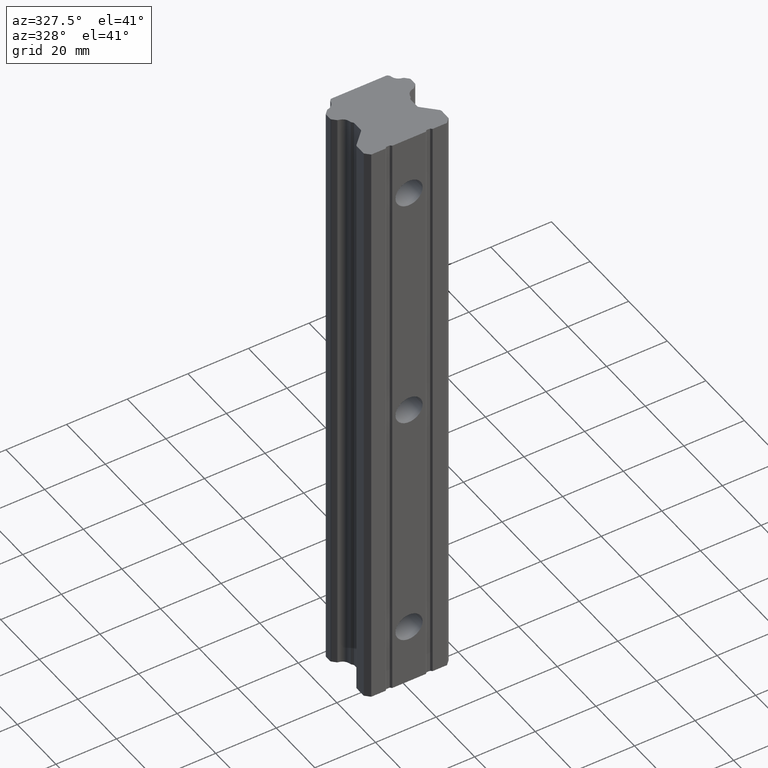
[diagram: clean part render]
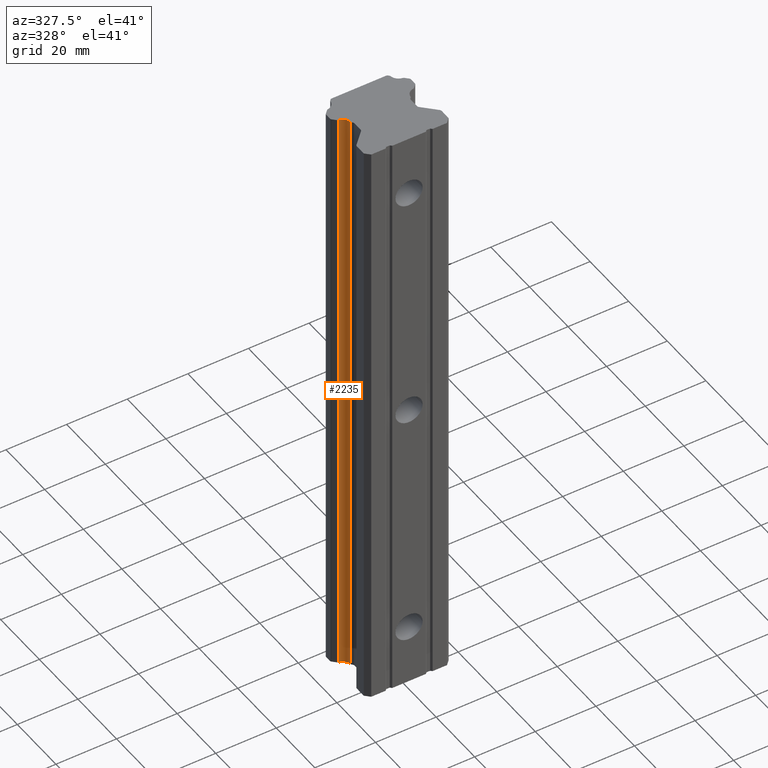
[diagram: same view with one face highlighted and labeled with its STEP entity id]
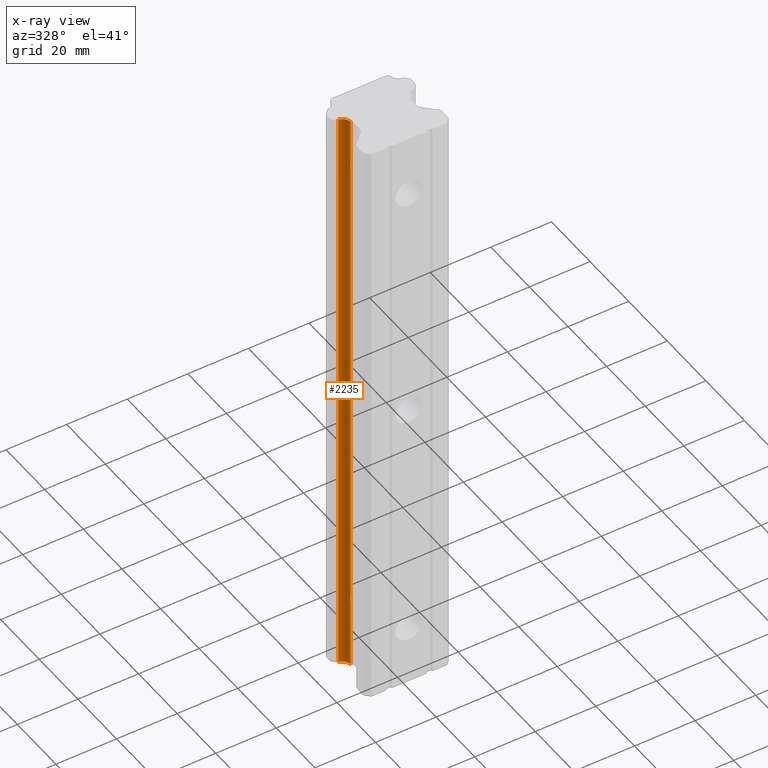
[diagram: x-ray of the same camera — body ghosted, the highlighted face saturated]
A machine part, auxiliary view. The second image highlights one B-rep face of the part: STEP entity #2235.
The next image is the same camera in x-ray: the body ghosted, the highlighted face saturated — about 0% of this face is hidden behind the body in this view.
In plain terms, the highlighted cylindrical surface (edge-blend (fillet) strip) has radius 2.83 mm, axis along (0, 0, 1).
Its self-contained STEP definition (entity closure, byte-faithful):
#106 = VERTEX_POINT ( 'NONE', #657 ) ;
#123 = VERTEX_POINT ( 'NONE', #686 ) ;
#126 = VERTEX_POINT ( 'NONE', #744 ) ;
#134 = EDGE_CURVE ( 'NONE', #126, #123, #734, .T. ) ;
#230 = VERTEX_POINT ( 'NONE', #928 ) ;
#242 = EDGE_CURVE ( 'NONE', #106, #230, #965, .T. ) ;
#358 = EDGE_LOOP ( 'NONE', ( #398, #449, #450, #452 ) ) ;
#398 = ORIENTED_EDGE ( 'NONE', *, *, #448, .F. ) ;
#448 = EDGE_CURVE ( 'NONE', #230, #126, #1166, .T. ) ;
#449 = ORIENTED_EDGE ( 'NONE', *, *, #242, .F. ) ;
#450 = ORIENTED_EDGE ( 'NONE', *, *, #451, .T. ) ;
#451 = EDGE_CURVE ( 'NONE', #106, #123, #1226, .T. ) ;
#452 = ORIENTED_EDGE ( 'NONE', *, *, #134, .F. ) ;
#657 = CARTESIAN_POINT ( 'NONE',  ( -12.37358042829977300, -8.709751972544125900, -100.0000000000000000 ) ) ;
#686 = CARTESIAN_POINT ( 'NONE',  ( -9.918833972544202700, -11.16449842829915300, -100.0000000000000000 ) ) ;
#731 = DIRECTION ( 'NONE',  ( 0.0000000000000000000, 0.0000000000000000000, -1.000000000000000000 ) ) ;
#732 = VECTOR ( 'NONE', #731, 1000.000000000000000 ) ;
#733 = CARTESIAN_POINT ( 'NONE',  ( -9.918833972547128400, -11.16449842829951100, -100.0000000000000000 ) ) ;
#734 = LINE ( 'NONE', #733, #732 ) ;
#744 = CARTESIAN_POINT ( 'NONE',  ( -9.918833972544202700, -11.16449842829915300, 100.0000000000000000 ) ) ;
#928 = CARTESIAN_POINT ( 'NONE',  ( -12.37358042829977300, -8.709751972544125900, 100.0000000000000000 ) ) ;
#962 = DIRECTION ( 'NONE',  ( 0.0000000000000000000, 0.0000000000000000000, 1.000000000000000000 ) ) ;
#963 = VECTOR ( 'NONE', #962, 1000.000000000000000 ) ;
#964 = CARTESIAN_POINT ( 'NONE',  ( -12.37358042830075200, -8.709751972546973400, -100.0000000000000000 ) ) ;
#965 = LINE ( 'NONE', #964, #963 ) ;
#1162 = DIRECTION ( 'NONE',  ( 1.000000000000000000, 6.129764932780239200E-016, 0.0000000000000000000 ) ) ;
#1163 = DIRECTION ( 'NONE',  ( 0.0000000000000000000, 0.0000000000000000000, -1.000000000000000000 ) ) ;
#1164 = CARTESIAN_POINT ( 'NONE',  ( -12.72671501738999900, -11.51763301739000100, 100.0000000000000000 ) ) ;
#1165 = AXIS2_PLACEMENT_3D ( 'NONE', #1164, #1163, #1162 ) ;
#1166 = CIRCLE ( 'NONE', #1165, 2.829999999999999200 ) ;
#1222 = DIRECTION ( 'NONE',  ( 1.000000000000000000, 6.129764932780239200E-016, 0.0000000000000000000 ) ) ;
#1223 = DIRECTION ( 'NONE',  ( 0.0000000000000000000, 0.0000000000000000000, -1.000000000000000000 ) ) ;
#1224 = CARTESIAN_POINT ( 'NONE',  ( -12.72671501738999900, -11.51763301739000100, -100.0000000000000000 ) ) ;
#1225 = AXIS2_PLACEMENT_3D ( 'NONE', #1224, #1223, #1222 ) ;
#1226 = CIRCLE ( 'NONE', #1225, 2.829999999999999200 ) ;
#1769 = CYLINDRICAL_SURFACE ( 'NONE', #1826, 2.829999999999999200 ) ;
#1770 = FACE_OUTER_BOUND ( 'NONE', #358, .T. ) ;
#1823 = DIRECTION ( 'NONE',  ( 1.000000000000000000, 0.0000000000000000000, 0.0000000000000000000 ) ) ;
#1824 = DIRECTION ( 'NONE',  ( 0.0000000000000000000, 0.0000000000000000000, 1.000000000000000000 ) ) ;
#1825 = CARTESIAN_POINT ( 'NONE',  ( -12.72671501738999900, -11.51763301739000100, -100.0000000000000000 ) ) ;
#1826 = AXIS2_PLACEMENT_3D ( 'NONE', #1825, #1824, #1823 ) ;
#2235 = ADVANCED_FACE ( 'NONE', ( #1770 ), #1769, .F. ) ;